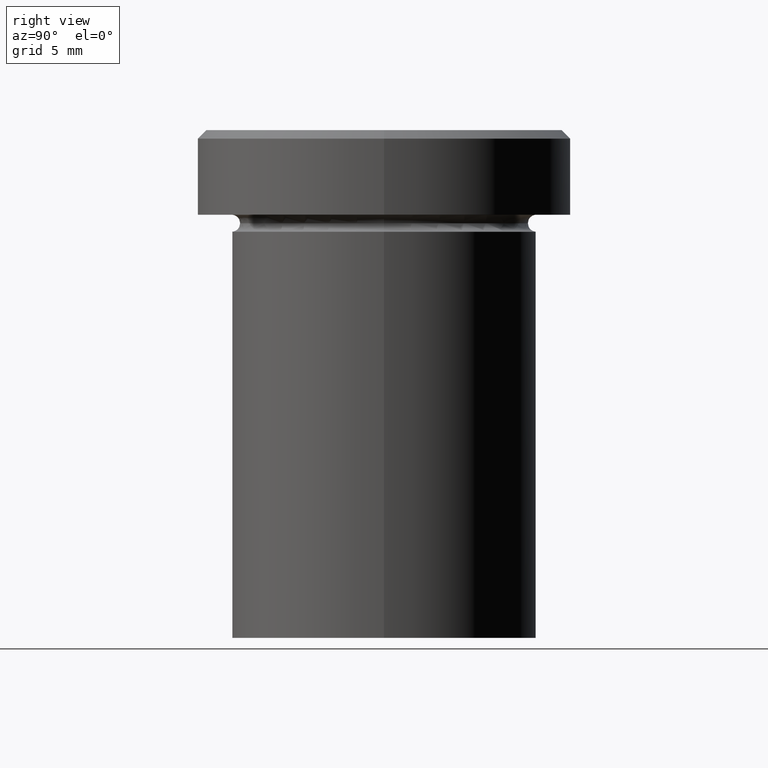
[diagram: clean part render]
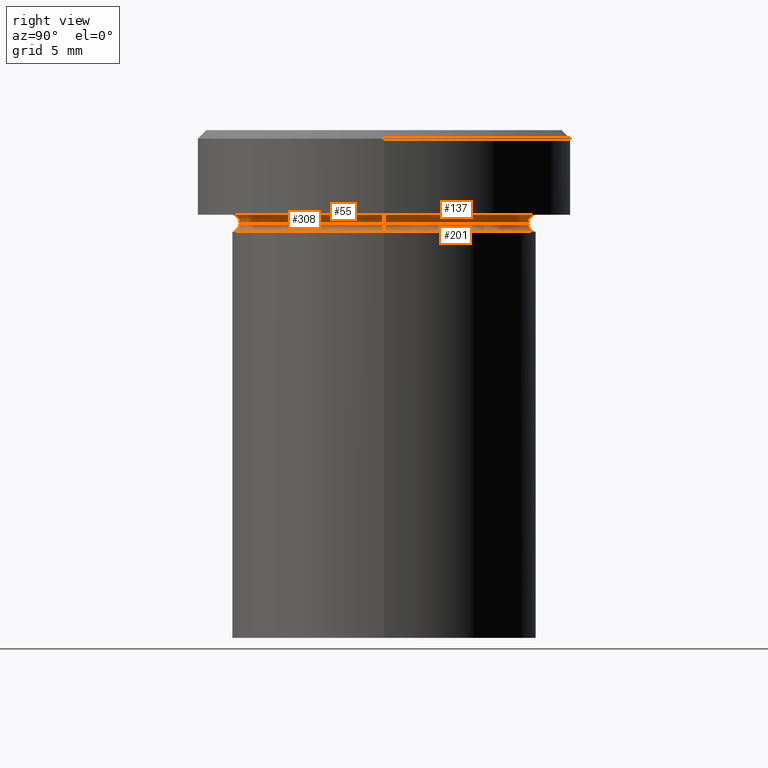
[diagram: same view with one multi-face feature highlighted, each face labeled with its STEP entity id]
A machine part, right view. The highlighted faces form ONE feature: a constant-radius fillet chain: 4 tangent blend faces with common blend radius 0.5 mm. The faces share edges in the B-rep.
Their STEP definitions:
[1] entity #308 (Torus):
#1 = AXIS2_PLACEMENT_3D ( 'NONE', #74, #387, #322 ) ;
#8 = FACE_OUTER_BOUND ( 'NONE', #177, .T. ) ;
#15 = CARTESIAN_POINT ( 'NONE',  ( 9.000000000000000000, 1.102182119232617714E-15, -5.500000000000000000 ) ) ;
#20 = DIRECTION ( 'NONE',  ( 1.000000000000000000, 0.000000000000000000, 0.000000000000000000 ) ) ;
#42 = EDGE_CURVE ( 'NONE', #405, #390, #106, .T. ) ;
#49 = CIRCLE ( 'NONE', #107, 9.000000000000000000 ) ;
#54 = CARTESIAN_POINT ( 'NONE',  ( 0.000000000000000000, 0.000000000000000000, -5.500000000000000000 ) ) ;
#62 = ORIENTED_EDGE ( 'NONE', *, *, #110, .F. ) ;
#74 = CARTESIAN_POINT ( 'NONE',  ( -9.000000000000000000, 0.000000000000000000, -5.500000000000000000 ) ) ;
#87 = CARTESIAN_POINT ( 'NONE',  ( 0.000000000000000000, 0.000000000000000000, -5.000000000000000000 ) ) ;
#106 = CIRCLE ( 'NONE', #233, 0.5000000000000004441 ) ;
#107 = AXIS2_PLACEMENT_3D ( 'NONE', #87, #118, #154 ) ;
#110 = EDGE_CURVE ( 'NONE', #220, #319, #218, .T. ) ;
#115 = DIRECTION ( 'NONE',  ( -0.000000000000000000, -0.000000000000000000, 1.000000000000000000 ) ) ;
#118 = DIRECTION ( 'NONE',  ( -0.000000000000000000, -0.000000000000000000, 1.000000000000000000 ) ) ;
#123 = CARTESIAN_POINT ( 'NONE',  ( -9.000000000000000000, 0.000000000000000000, -4.999999999999999112 ) ) ;
#141 = DIRECTION ( 'NONE',  ( -1.000000000000000000, -1.224646799147353454E-16, 0.000000000000000000 ) ) ;
#154 = DIRECTION ( 'NONE',  ( -1.000000000000000000, 0.000000000000000000, 0.000000000000000000 ) ) ;
#158 = CIRCLE ( 'NONE', #380, 8.499999999999998224 ) ;
#177 = EDGE_LOOP ( 'NONE', ( #223, #370, #350, #62 ) ) ;
#202 = TOROIDAL_SURFACE ( 'NONE', #255, 9.000000000000000000, 0.5000000000000000000 ) ;
#207 = CARTESIAN_POINT ( 'NONE',  ( 9.000000000000000000, 1.102182119232617714E-15, -4.999999999999999112 ) ) ;
#210 = DIRECTION ( 'NONE',  ( 0.000000000000000000, 0.000000000000000000, -1.000000000000000000 ) ) ;
#218 = CIRCLE ( 'NONE', #1, 0.5000000000000004441 ) ;
#219 = EDGE_CURVE ( 'NONE', #319, #390, #49, .T. ) ;
#220 = VERTEX_POINT ( 'NONE', #356 ) ;
#223 = ORIENTED_EDGE ( 'NONE', *, *, #339, .T. ) ;
#230 = CARTESIAN_POINT ( 'NONE',  ( 8.499999999999998224, 0.000000000000000000, -5.500000000000000000 ) ) ;
#233 = AXIS2_PLACEMENT_3D ( 'NONE', #15, #237, #141 ) ;
#237 = DIRECTION ( 'NONE',  ( -1.224646799147353207E-16, 1.000000000000000000, 0.000000000000000000 ) ) ;
#255 = AXIS2_PLACEMENT_3D ( 'NONE', #363, #210, #269 ) ;
#269 = DIRECTION ( 'NONE',  ( -1.000000000000000000, 0.000000000000000000, 0.000000000000000000 ) ) ;
#308 = ADVANCED_FACE ( 'NONE', ( #8 ), #202, .F. ) ;
#319 = VERTEX_POINT ( 'NONE', #123 ) ;
#322 = DIRECTION ( 'NONE',  ( 0.000000000000000000, 0.000000000000000000, -1.000000000000000000 ) ) ;
#339 = EDGE_CURVE ( 'NONE', #220, #405, #158, .T. ) ;
#350 = ORIENTED_EDGE ( 'NONE', *, *, #219, .F. ) ;
#356 = CARTESIAN_POINT ( 'NONE',  ( -8.499999999999998224, 1.071565949253933927E-15, -5.500000000000000000 ) ) ;
#363 = CARTESIAN_POINT ( 'NONE',  ( 0.000000000000000000, 0.000000000000000000, -5.500000000000000000 ) ) ;
#370 = ORIENTED_EDGE ( 'NONE', *, *, #42, .T. ) ;
#380 = AXIS2_PLACEMENT_3D ( 'NONE', #54, #115, #20 ) ;
#387 = DIRECTION ( 'NONE',  ( -0.000000000000000000, -1.000000000000000000, -0.000000000000000000 ) ) ;
#390 = VERTEX_POINT ( 'NONE', #207 ) ;
#405 = VERTEX_POINT ( 'NONE', #230 ) ;
[2] entity #137 (Torus):
#1 = AXIS2_PLACEMENT_3D ( 'NONE', #74, #387, #322 ) ;
#13 = ORIENTED_EDGE ( 'NONE', *, *, #42, .F. ) ;
#15 = CARTESIAN_POINT ( 'NONE',  ( 9.000000000000000000, 1.102182119232617714E-15, -5.500000000000000000 ) ) ;
#19 = EDGE_CURVE ( 'NONE', #405, #220, #21, .T. ) ;
#21 = CIRCLE ( 'NONE', #216, 8.499999999999998224 ) ;
#30 = ORIENTED_EDGE ( 'NONE', *, *, #110, .T. ) ;
#32 = ORIENTED_EDGE ( 'NONE', *, *, #297, .F. ) ;
#36 = DIRECTION ( 'NONE',  ( -0.000000000000000000, -0.000000000000000000, 1.000000000000000000 ) ) ;
#42 = EDGE_CURVE ( 'NONE', #405, #390, #106, .T. ) ;
#60 = CIRCLE ( 'NONE', #289, 9.000000000000000000 ) ;
#74 = CARTESIAN_POINT ( 'NONE',  ( -9.000000000000000000, 0.000000000000000000, -5.500000000000000000 ) ) ;
#106 = CIRCLE ( 'NONE', #233, 0.5000000000000004441 ) ;
#110 = EDGE_CURVE ( 'NONE', #220, #319, #218, .T. ) ;
#123 = CARTESIAN_POINT ( 'NONE',  ( -9.000000000000000000, 0.000000000000000000, -4.999999999999999112 ) ) ;
#129 = DIRECTION ( 'NONE',  ( 0.000000000000000000, 0.000000000000000000, -1.000000000000000000 ) ) ;
#137 = ADVANCED_FACE ( 'NONE', ( #257 ), #184, .F. ) ;
#141 = DIRECTION ( 'NONE',  ( -1.000000000000000000, -1.224646799147353454E-16, 0.000000000000000000 ) ) ;
#145 = CARTESIAN_POINT ( 'NONE',  ( 0.000000000000000000, 0.000000000000000000, -5.500000000000000000 ) ) ;
#184 = TOROIDAL_SURFACE ( 'NONE', #278, 9.000000000000000000, 0.5000000000000000000 ) ;
#194 = ORIENTED_EDGE ( 'NONE', *, *, #19, .T. ) ;
#207 = CARTESIAN_POINT ( 'NONE',  ( 9.000000000000000000, 1.102182119232617714E-15, -4.999999999999999112 ) ) ;
#216 = AXIS2_PLACEMENT_3D ( 'NONE', #145, #365, #271 ) ;
#218 = CIRCLE ( 'NONE', #1, 0.5000000000000004441 ) ;
#220 = VERTEX_POINT ( 'NONE', #356 ) ;
#230 = CARTESIAN_POINT ( 'NONE',  ( 8.499999999999998224, 0.000000000000000000, -5.500000000000000000 ) ) ;
#233 = AXIS2_PLACEMENT_3D ( 'NONE', #15, #237, #141 ) ;
#237 = DIRECTION ( 'NONE',  ( -1.224646799147353207E-16, 1.000000000000000000, 0.000000000000000000 ) ) ;
#253 = DIRECTION ( 'NONE',  ( -1.000000000000000000, 0.000000000000000000, 0.000000000000000000 ) ) ;
#254 = DIRECTION ( 'NONE',  ( -1.000000000000000000, 0.000000000000000000, 0.000000000000000000 ) ) ;
#257 = FACE_OUTER_BOUND ( 'NONE', #281, .T. ) ;
#271 = DIRECTION ( 'NONE',  ( 1.000000000000000000, 0.000000000000000000, 0.000000000000000000 ) ) ;
#278 = AXIS2_PLACEMENT_3D ( 'NONE', #318, #129, #254 ) ;
#281 = EDGE_LOOP ( 'NONE', ( #13, #194, #30, #32 ) ) ;
#289 = AXIS2_PLACEMENT_3D ( 'NONE', #313, #36, #253 ) ;
#297 = EDGE_CURVE ( 'NONE', #390, #319, #60, .T. ) ;
#313 = CARTESIAN_POINT ( 'NONE',  ( 0.000000000000000000, 0.000000000000000000, -5.000000000000000000 ) ) ;
#318 = CARTESIAN_POINT ( 'NONE',  ( 0.000000000000000000, 0.000000000000000000, -5.500000000000000000 ) ) ;
#319 = VERTEX_POINT ( 'NONE', #123 ) ;
#322 = DIRECTION ( 'NONE',  ( 0.000000000000000000, 0.000000000000000000, -1.000000000000000000 ) ) ;
#356 = CARTESIAN_POINT ( 'NONE',  ( -8.499999999999998224, 1.071565949253933927E-15, -5.500000000000000000 ) ) ;
#365 = DIRECTION ( 'NONE',  ( -0.000000000000000000, -0.000000000000000000, 1.000000000000000000 ) ) ;
#387 = DIRECTION ( 'NONE',  ( -0.000000000000000000, -1.000000000000000000, -0.000000000000000000 ) ) ;
#390 = VERTEX_POINT ( 'NONE', #207 ) ;
#405 = VERTEX_POINT ( 'NONE', #230 ) ;
[3] entity #201 (Torus):
#9 = CIRCLE ( 'NONE', #242, 9.000000000000000000 ) ;
#14 = ORIENTED_EDGE ( 'NONE', *, *, #402, .T. ) ;
#19 = EDGE_CURVE ( 'NONE', #405, #220, #21, .T. ) ;
#21 = CIRCLE ( 'NONE', #216, 8.499999999999998224 ) ;
#22 = DIRECTION ( 'NONE',  ( 1.224646799147353207E-16, 1.000000000000000000, 0.000000000000000000 ) ) ;
#39 = ORIENTED_EDGE ( 'NONE', *, *, #291, .T. ) ;
#47 = CARTESIAN_POINT ( 'NONE',  ( 9.000000000000000000, 0.000000000000000000, -6.000000000000000000 ) ) ;
#96 = DIRECTION ( 'NONE',  ( 1.000000000000000000, 0.000000000000000000, 0.000000000000000000 ) ) ;
#113 = VERTEX_POINT ( 'NONE', #371 ) ;
#138 = CARTESIAN_POINT ( 'NONE',  ( 9.000000000000000000, 0.000000000000000000, -5.500000000000000000 ) ) ;
#143 = DIRECTION ( 'NONE',  ( 0.000000000000000000, -1.000000000000000000, 0.000000000000000000 ) ) ;
#144 = FACE_OUTER_BOUND ( 'NONE', #314, .T. ) ;
#145 = CARTESIAN_POINT ( 'NONE',  ( 0.000000000000000000, 0.000000000000000000, -5.500000000000000000 ) ) ;
#160 = AXIS2_PLACEMENT_3D ( 'NONE', #138, #143, #385 ) ;
#169 = VERTEX_POINT ( 'NONE', #47 ) ;
#187 = DIRECTION ( 'NONE',  ( -1.000000000000000000, 1.224646799147353454E-16, 0.000000000000000000 ) ) ;
#190 = AXIS2_PLACEMENT_3D ( 'NONE', #302, #22, #187 ) ;
#201 = ADVANCED_FACE ( 'NONE', ( #144 ), #374, .F. ) ;
#216 = AXIS2_PLACEMENT_3D ( 'NONE', #145, #365, #271 ) ;
#220 = VERTEX_POINT ( 'NONE', #356 ) ;
#230 = CARTESIAN_POINT ( 'NONE',  ( 8.499999999999998224, 0.000000000000000000, -5.500000000000000000 ) ) ;
#238 = DIRECTION ( 'NONE',  ( 1.000000000000000000, 0.000000000000000000, 0.000000000000000000 ) ) ;
#242 = AXIS2_PLACEMENT_3D ( 'NONE', #337, #282, #96 ) ;
#259 = CIRCLE ( 'NONE', #190, 0.5000000000000004441 ) ;
#266 = CARTESIAN_POINT ( 'NONE',  ( 0.000000000000000000, 0.000000000000000000, -5.500000000000000000 ) ) ;
#271 = DIRECTION ( 'NONE',  ( 1.000000000000000000, 0.000000000000000000, 0.000000000000000000 ) ) ;
#272 = EDGE_CURVE ( 'NONE', #220, #113, #259, .T. ) ;
#277 = ORIENTED_EDGE ( 'NONE', *, *, #272, .F. ) ;
#282 = DIRECTION ( 'NONE',  ( -0.000000000000000000, -0.000000000000000000, 1.000000000000000000 ) ) ;
#291 = EDGE_CURVE ( 'NONE', #169, #113, #9, .T. ) ;
#302 = CARTESIAN_POINT ( 'NONE',  ( -9.000000000000000000, 1.102182119232617714E-15, -5.500000000000000000 ) ) ;
#314 = EDGE_LOOP ( 'NONE', ( #277, #403, #14, #39 ) ) ;
#337 = CARTESIAN_POINT ( 'NONE',  ( 0.000000000000000000, 0.000000000000000000, -6.000000000000000000 ) ) ;
#342 = CIRCLE ( 'NONE', #160, 0.5000000000000004441 ) ;
#356 = CARTESIAN_POINT ( 'NONE',  ( -8.499999999999998224, 1.071565949253933927E-15, -5.500000000000000000 ) ) ;
#361 = AXIS2_PLACEMENT_3D ( 'NONE', #266, #392, #238 ) ;
#365 = DIRECTION ( 'NONE',  ( -0.000000000000000000, -0.000000000000000000, 1.000000000000000000 ) ) ;
#371 = CARTESIAN_POINT ( 'NONE',  ( -9.000000000000000000, 1.102182119232617714E-15, -6.000000000000000000 ) ) ;
#374 = TOROIDAL_SURFACE ( 'NONE', #361, 9.000000000000000000, 0.5000000000000000000 ) ;
#385 = DIRECTION ( 'NONE',  ( 0.000000000000000000, 0.000000000000000000, -1.000000000000000000 ) ) ;
#392 = DIRECTION ( 'NONE',  ( -0.000000000000000000, -0.000000000000000000, 1.000000000000000000 ) ) ;
#402 = EDGE_CURVE ( 'NONE', #405, #169, #342, .T. ) ;
#403 = ORIENTED_EDGE ( 'NONE', *, *, #19, .F. ) ;
#405 = VERTEX_POINT ( 'NONE', #230 ) ;
[4] entity #55 (Torus):
#7 = CARTESIAN_POINT ( 'NONE',  ( 0.000000000000000000, 0.000000000000000000, -5.500000000000000000 ) ) ;
#20 = DIRECTION ( 'NONE',  ( 1.000000000000000000, 0.000000000000000000, 0.000000000000000000 ) ) ;
#22 = DIRECTION ( 'NONE',  ( 1.224646799147353207E-16, 1.000000000000000000, 0.000000000000000000 ) ) ;
#47 = CARTESIAN_POINT ( 'NONE',  ( 9.000000000000000000, 0.000000000000000000, -6.000000000000000000 ) ) ;
#54 = CARTESIAN_POINT ( 'NONE',  ( 0.000000000000000000, 0.000000000000000000, -5.500000000000000000 ) ) ;
#55 = ADVANCED_FACE ( 'NONE', ( #75 ), #124, .F. ) ;
#61 = AXIS2_PLACEMENT_3D ( 'NONE', #205, #299, #320 ) ;
#75 = FACE_OUTER_BOUND ( 'NONE', #188, .T. ) ;
#95 = ORIENTED_EDGE ( 'NONE', *, *, #272, .T. ) ;
#113 = VERTEX_POINT ( 'NONE', #371 ) ;
#115 = DIRECTION ( 'NONE',  ( -0.000000000000000000, -0.000000000000000000, 1.000000000000000000 ) ) ;
#124 = TOROIDAL_SURFACE ( 'NONE', #397, 9.000000000000000000, 0.5000000000000000000 ) ;
#125 = CIRCLE ( 'NONE', #61, 9.000000000000000000 ) ;
#138 = CARTESIAN_POINT ( 'NONE',  ( 9.000000000000000000, 0.000000000000000000, -5.500000000000000000 ) ) ;
#143 = DIRECTION ( 'NONE',  ( 0.000000000000000000, -1.000000000000000000, 0.000000000000000000 ) ) ;
#158 = CIRCLE ( 'NONE', #380, 8.499999999999998224 ) ;
#160 = AXIS2_PLACEMENT_3D ( 'NONE', #138, #143, #385 ) ;
#161 = ORIENTED_EDGE ( 'NONE', *, *, #339, .F. ) ;
#169 = VERTEX_POINT ( 'NONE', #47 ) ;
#187 = DIRECTION ( 'NONE',  ( -1.000000000000000000, 1.224646799147353454E-16, 0.000000000000000000 ) ) ;
#188 = EDGE_LOOP ( 'NONE', ( #161, #95, #349, #222 ) ) ;
#190 = AXIS2_PLACEMENT_3D ( 'NONE', #302, #22, #187 ) ;
#205 = CARTESIAN_POINT ( 'NONE',  ( 0.000000000000000000, 0.000000000000000000, -6.000000000000000000 ) ) ;
#220 = VERTEX_POINT ( 'NONE', #356 ) ;
#222 = ORIENTED_EDGE ( 'NONE', *, *, #402, .F. ) ;
#225 = DIRECTION ( 'NONE',  ( -0.000000000000000000, -0.000000000000000000, 1.000000000000000000 ) ) ;
#230 = CARTESIAN_POINT ( 'NONE',  ( 8.499999999999998224, 0.000000000000000000, -5.500000000000000000 ) ) ;
#259 = CIRCLE ( 'NONE', #190, 0.5000000000000004441 ) ;
#272 = EDGE_CURVE ( 'NONE', #220, #113, #259, .T. ) ;
#299 = DIRECTION ( 'NONE',  ( -0.000000000000000000, -0.000000000000000000, 1.000000000000000000 ) ) ;
#302 = CARTESIAN_POINT ( 'NONE',  ( -9.000000000000000000, 1.102182119232617714E-15, -5.500000000000000000 ) ) ;
#320 = DIRECTION ( 'NONE',  ( 1.000000000000000000, 0.000000000000000000, 0.000000000000000000 ) ) ;
#339 = EDGE_CURVE ( 'NONE', #220, #405, #158, .T. ) ;
#342 = CIRCLE ( 'NONE', #160, 0.5000000000000004441 ) ;
#343 = DIRECTION ( 'NONE',  ( 1.000000000000000000, 0.000000000000000000, 0.000000000000000000 ) ) ;
#349 = ORIENTED_EDGE ( 'NONE', *, *, #409, .T. ) ;
#356 = CARTESIAN_POINT ( 'NONE',  ( -8.499999999999998224, 1.071565949253933927E-15, -5.500000000000000000 ) ) ;
#371 = CARTESIAN_POINT ( 'NONE',  ( -9.000000000000000000, 1.102182119232617714E-15, -6.000000000000000000 ) ) ;
#380 = AXIS2_PLACEMENT_3D ( 'NONE', #54, #115, #20 ) ;
#385 = DIRECTION ( 'NONE',  ( 0.000000000000000000, 0.000000000000000000, -1.000000000000000000 ) ) ;
#397 = AXIS2_PLACEMENT_3D ( 'NONE', #7, #225, #343 ) ;
#402 = EDGE_CURVE ( 'NONE', #405, #169, #342, .T. ) ;
#405 = VERTEX_POINT ( 'NONE', #230 ) ;
#409 = EDGE_CURVE ( 'NONE', #113, #169, #125, .T. ) ;